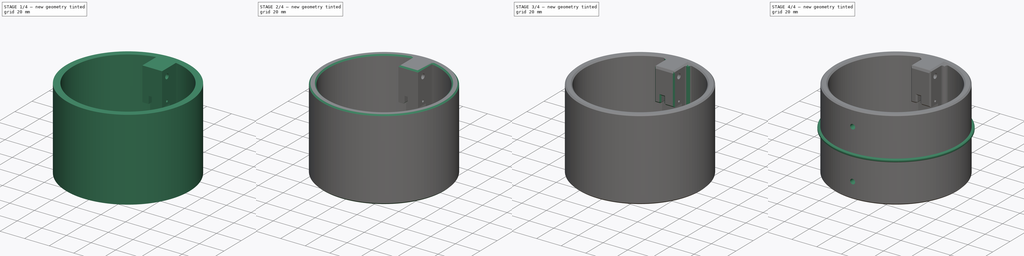
[diagram: build sequence overview — one tinted view per stage of 4, left to right]
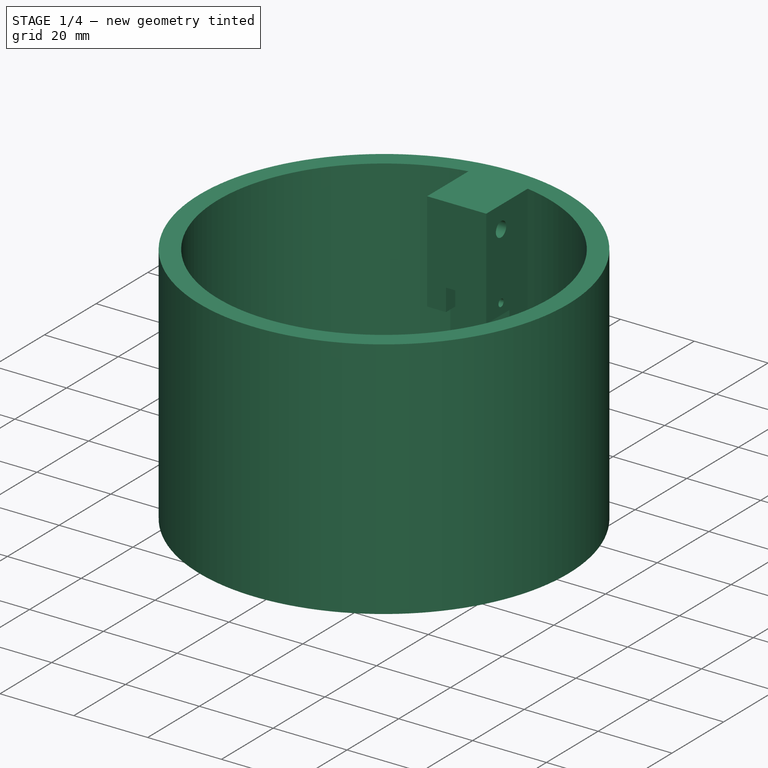
[diagram: stage 1 of 4 — iso view after this stage's code; geometry added in this stage tinted green]
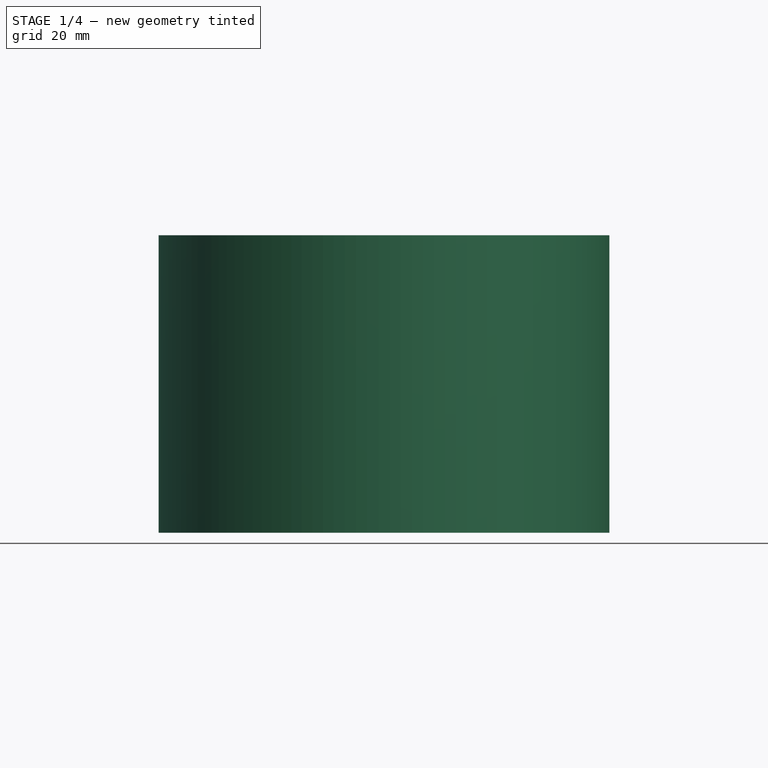
[diagram: stage 1 of 4 — front view after this stage's code; geometry added in this stage tinted green]
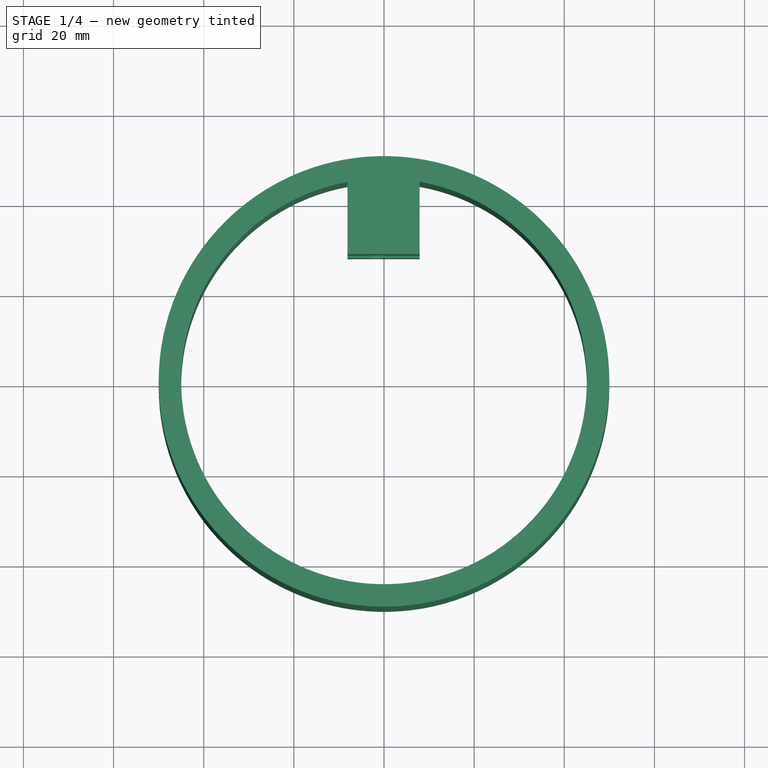
[diagram: stage 1 of 4 — top view after this stage's code; geometry added in this stage tinted green]
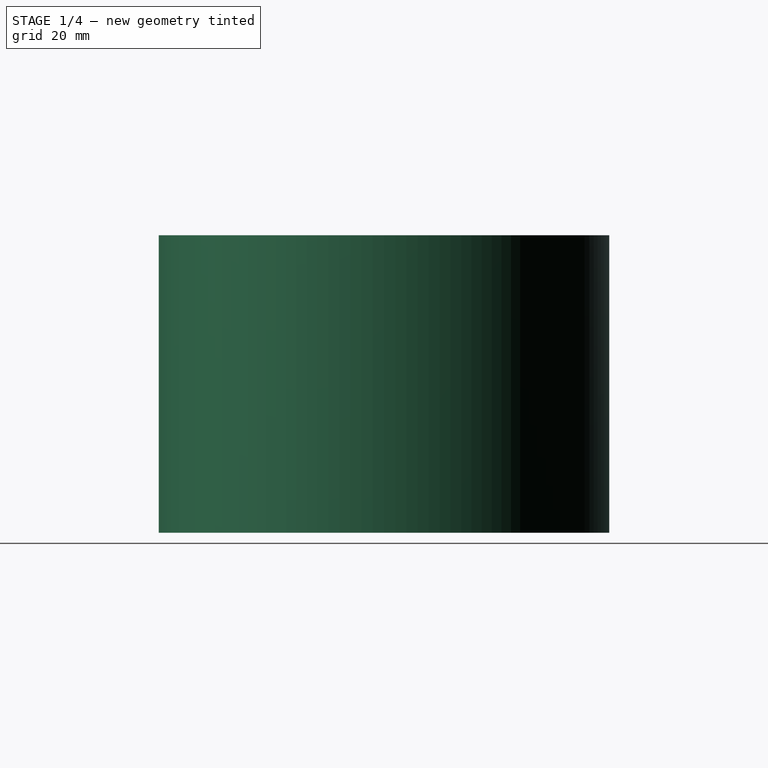
[diagram: stage 1 of 4 — right view after this stage's code; geometry added in this stage tinted green]
FCSTD DOCUMENT  (FreeCAD 0.18.3R)
Label: gondel
License: All rights reserved
LicenseURL: http://en.wikipedia.org/wiki/All_rights_reserved
objects: Sketcher::SketchObject×5, PartDesign::Chamfer×5, PartDesign::Pocket×3, PartDesign::Pad×2, PartDesign::Fillet×1, PartDesign::Body×1
note: 22 computed .brp shape members not serialized (recipe doc carries the construction recipe); baked Part::Feature solids carry a one-line shape summary decoded from their .brp

FEATURE [Sketcher::SketchObject] Sketch
  MapMode = 5
  Support = -> [XY_Plane]
  sketch-geometry (5):
    g0: Circle CenterX=0 CenterY=0 CenterZ=0 NormalX=0 NormalY=0 NormalZ=1 AngleXU=0 Radius=50
    g1: ArcOfCircle CenterX=0 CenterY=0 CenterZ=0 NormalX=0 NormalY=0 NormalZ=1 AngleXU=0 Radius=45 StartAngle=1.75181 EndAngle=7.67754
    g2: LineSegment StartX=-8.10111 StartY=44.2648 StartZ=0 EndX=-8.10111 EndY=28.2648 EndZ=0
    g3: LineSegment StartX=-8.10111 StartY=28.2648 StartZ=0 EndX=7.89885 EndY=28.2648 EndZ=0
    g4: LineSegment StartX=7.89885 StartY=28.2648 StartZ=0 EndX=7.89885 EndY=44.3013 EndZ=0
  constraints (13):
    c: Radius(g0) = 50
    c: Coincident(g-1,g0)
    c: Coincident(g1,g0)
    c: Distance(g1,g1) = 16
    c: Radius(g1) = 45
    c: Coincident(g2,g3)
    c: Coincident(g3,g4)
    c: Coincident(g1,g2)
    c: Coincident(g4,g1)
    c: Vertical(g2)
    c: Vertical(g4)
    c: Horizontal(g3)
    c: Distance(g2) = 16
FEATURE [PartDesign::Pad] Pad
  Length = 66
  Length2 = 100
  Midplane = true
  Profile = -> Sketch
  Type = 0
FEATURE [Sketcher::SketchObject] Sketch001
  MapMode = 5
  Placement = pos=(7.89885,0,0) rot=(0.57735,0.57735,0.57735;2.0944rad)
  Support = -> [Pad]
  sketch-geometry (4):
    g0: Circle CenterX=34 CenterY=27 CenterZ=0 NormalX=0 NormalY=0 NormalZ=1 AngleXU=0 Radius=2
    g1: Circle CenterX=34 CenterY=-27 CenterZ=0 NormalX=0 NormalY=0 NormalZ=1 AngleXU=0 Radius=2
    g2: Circle CenterX=34 CenterY=9 CenterZ=0 NormalX=0 NormalY=0 NormalZ=1 AngleXU=0 Radius=1
    g3: Circle CenterX=34 CenterY=-20 CenterZ=0 NormalX=0 NormalY=0 NormalZ=1 AngleXU=0 Radius=1
  constraints (12):
    c: DistanceY(g1,g-1) = 27
    c: DistanceY(g-1,g0) = 27
    c: Radius(g0) = 2
    c: Radius(g1) = 2
    c: DistanceX(g-1,g0) = 34
    c: DistanceX(g-1,g1) = 34
    c: Radius(g2) = 1
    c: Radius(g3) = 1
    c: DistanceX(g-1,g2) = 34
    c: DistanceX(g-1,g3) = 34
    c: DistanceY(g-1,g2) = 9
    c: DistanceY(g3,g-1) = 20
FEATURE [PartDesign::Pocket] Pocket
  BaseFeature = -> Pad
  Length = 16
  Length2 = 100
  Profile = -> Sketch001
  Type = 0
FEATURE [Sketcher::SketchObject] Sketch008
  MapMode = 5
  Placement = pos=(0,28.2648,0) rot=(1,0,0;1.5708rad)
  Support = -> [Pocket]
  sketch-geometry (12):
    g0: LineSegment StartX=-8.5 StartY=6 StartZ=0 EndX=-3 EndY=6 EndZ=0
    g1: LineSegment StartX=-3 StartY=6 StartZ=0 EndX=-3 EndY=12 EndZ=0
    g2: LineSegment StartX=-3 StartY=12 StartZ=0 EndX=-0.5 EndY=12 EndZ=0
    g3: LineSegment StartX=-0.5 StartY=12 StartZ=0 EndX=-0.5 EndY=6 EndZ=0
    g4: LineSegment StartX=-0.5 StartY=6 StartZ=0 EndX=8.5 EndY=6 EndZ=0
    g5: LineSegment StartX=8.5 StartY=6 StartZ=0 EndX=8.5 EndY=-17 EndZ=0
    g6: LineSegment StartX=8.5 StartY=-17 StartZ=0 EndX=-0.5 EndY=-17 EndZ=0
    g7: LineSegment StartX=-0.5 StartY=-17 StartZ=0 EndX=-0.5 EndY=-23 EndZ=0
    g8: LineSegment StartX=-0.5 StartY=-23 StartZ=0 EndX=-3 EndY=-23 EndZ=0
    g9: LineSegment StartX=-3 StartY=-23 StartZ=0 EndX=-3 EndY=-17 EndZ=0
    g10: LineSegment StartX=-3 StartY=-17 StartZ=0 EndX=-8.5 EndY=-17 EndZ=0
    g11: LineSegment StartX=-8.5 StartY=-17 StartZ=0 EndX=-8.5 EndY=6 EndZ=0
  constraints (37):
    c: Coincident(g0,g1)
    c: Coincident(g1,g2)
    c: Coincident(g2,g3)
    c: Coincident(g3,g4)
    c: Coincident(g4,g5)
    c: Coincident(g5,g6)
    c: Coincident(g6,g7)
    c: Coincident(g7,g8)
    c: Coincident(g8,g9)
    c: Coincident(g9,g10)
    c: Coincident(g10,g11)
    c: Horizontal(g2)
    c: Horizontal(g0)
    c: Horizontal(g4)
    c: Horizontal(g6)
    c: Horizontal(g10)
    c: Horizontal(g8)
    c: Vertical(g11)
    c: Vertical(g9)
    c: Vertical(g7)
    c: Vertical(g5)
    c: Vertical(g1)
    c: Vertical(g3)
    c: Distance(g5) = 23
    c: Distance(g3) = 6
    c: Distance(g7) = 6
    c: Distance(g0) = 5.5
    c: Distance(g2) = 2.5
    c: Distance(g4) = 9
    c: Equal(g7,g9)
    c: Equal(g8,g2)
    c: Equal(g3,g1)
    c: Equal(g4,g6)
    c: Equal(g10,g0)
    c: Equal(g11,g5)
    c: DistanceX(g0,g-1) = 8.5
    c: DistanceY(g-1,g0) = 6
FEATURE [PartDesign::Pocket] Pocket002
  BaseFeature = -> Pocket
  Length = 9
  Length2 = 100
  Profile = -> Sketch008
  Type = 0
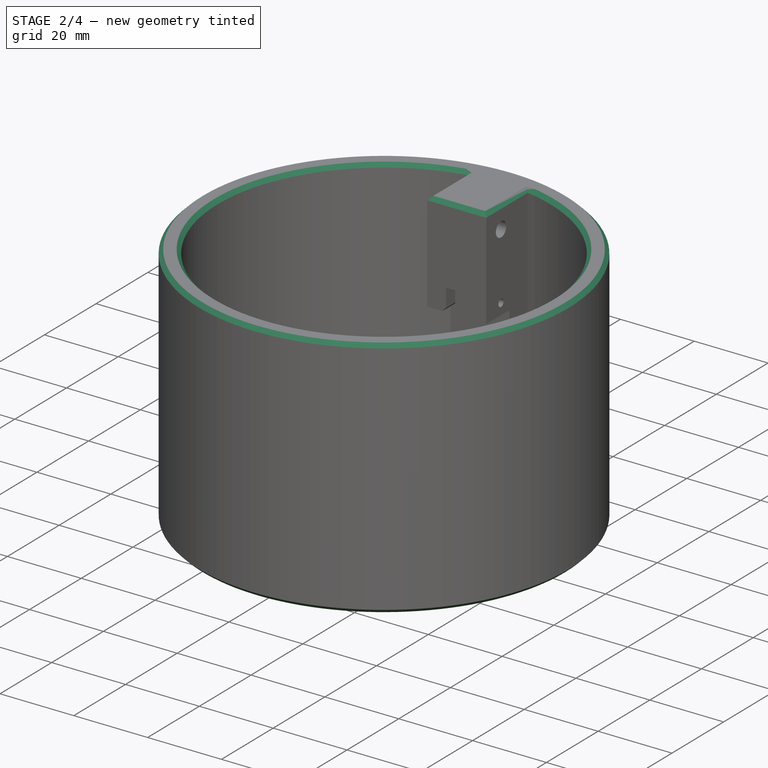
[diagram: stage 2 of 4 — iso view after this stage's code; geometry added in this stage tinted green]
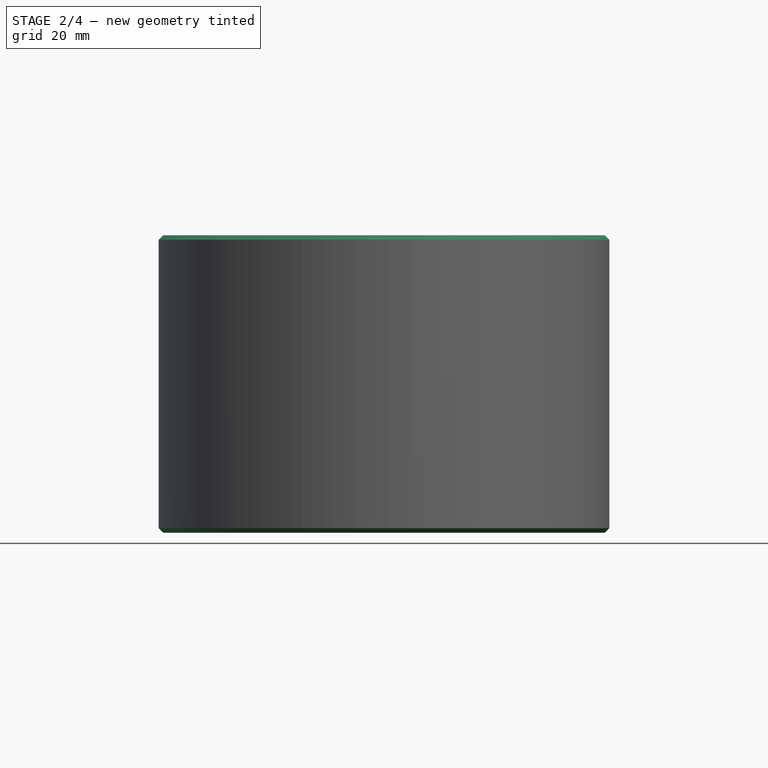
[diagram: stage 2 of 4 — front view after this stage's code; geometry added in this stage tinted green]
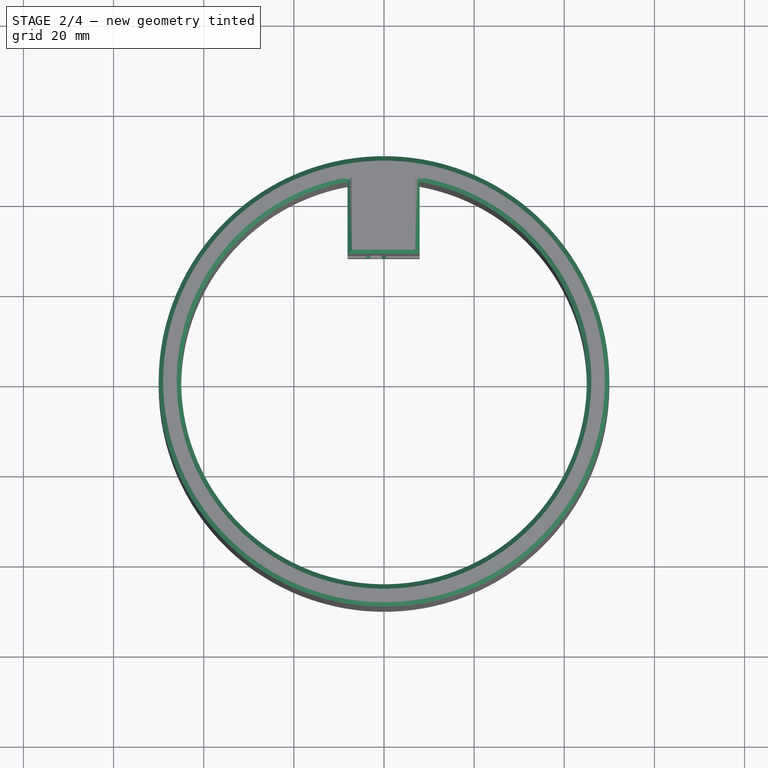
[diagram: stage 2 of 4 — top view after this stage's code; geometry added in this stage tinted green]
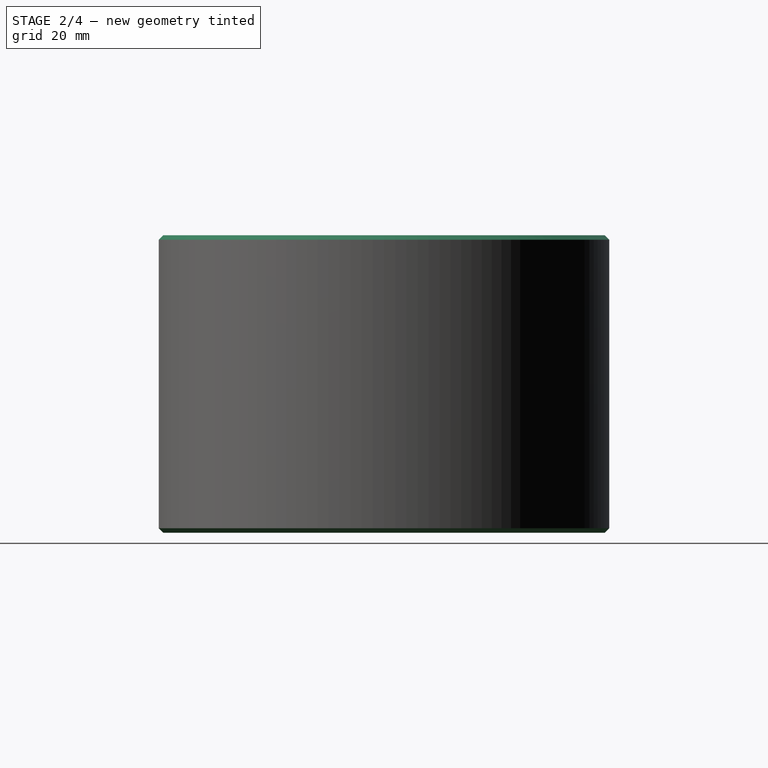
[diagram: stage 2 of 4 — right view after this stage's code; geometry added in this stage tinted green]
FEATURE [PartDesign::Chamfer] Chamfer
  Base = -> Pocket002 [Face3]
  BaseFeature = -> Pocket002
  Size = 1
FEATURE [PartDesign::Chamfer] Chamfer001
  Base = -> Chamfer [Face3]
  BaseFeature = -> Chamfer
  Size = 1
FEATURE [PartDesign::Chamfer] Chamfer002
  Base = -> Chamfer001 [Edge63,Edge80,Edge84,Edge64]
  BaseFeature = -> Chamfer001
  Size = 1
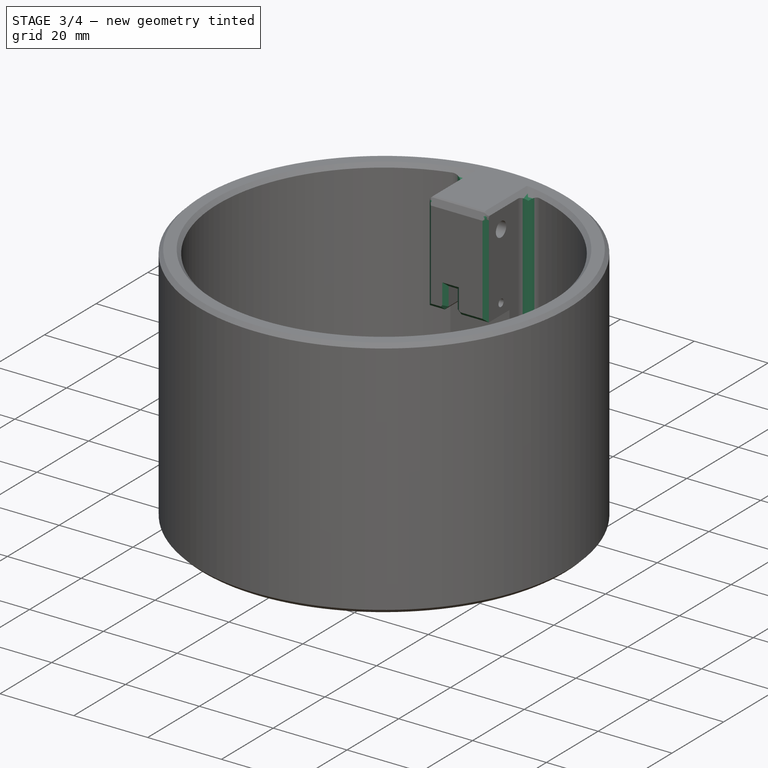
[diagram: stage 3 of 4 — iso view after this stage's code; geometry added in this stage tinted green]
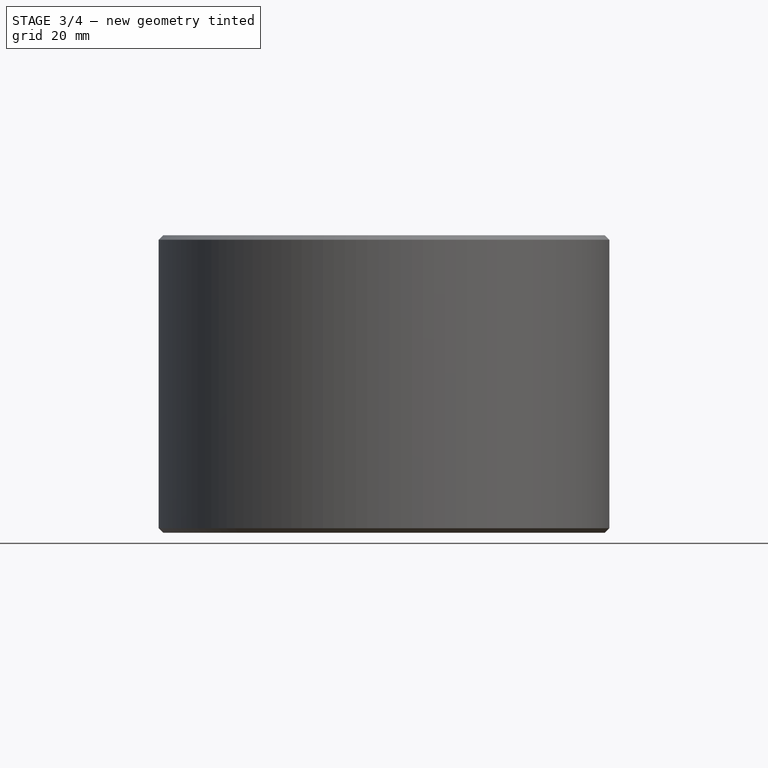
[diagram: stage 3 of 4 — front view after this stage's code; geometry added in this stage tinted green]
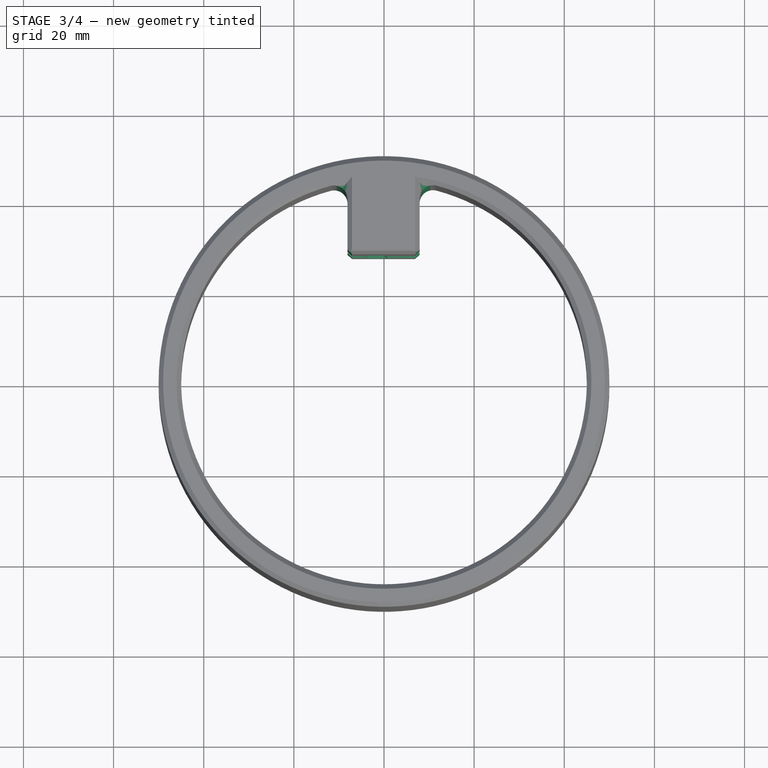
[diagram: stage 3 of 4 — top view after this stage's code; geometry added in this stage tinted green]
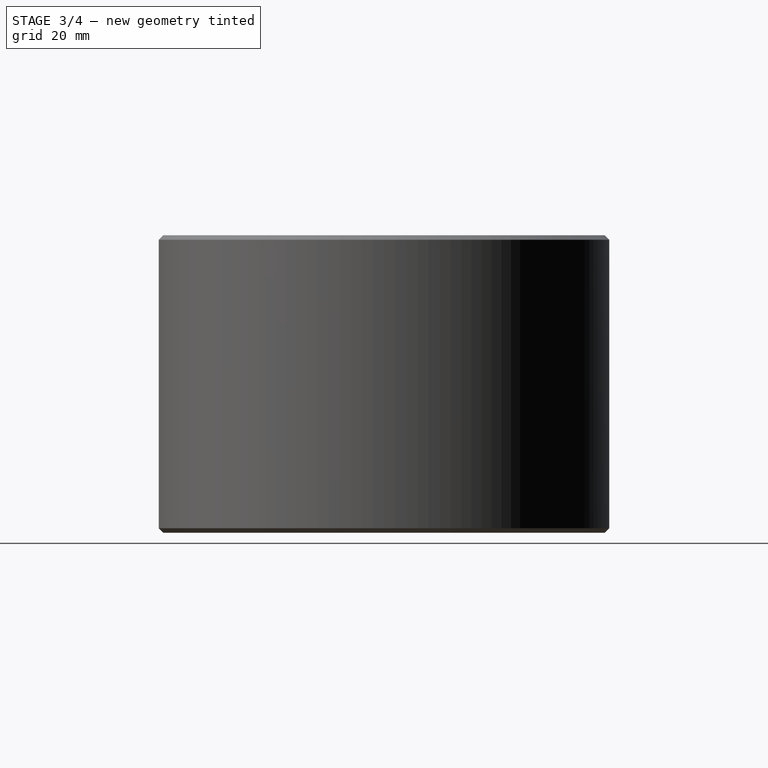
[diagram: stage 3 of 4 — right view after this stage's code; geometry added in this stage tinted green]
FEATURE [PartDesign::Chamfer] Chamfer003
  Base = -> Chamfer002 [Face1,Face16]
  BaseFeature = -> Chamfer002
  Size = 1
FEATURE [PartDesign::Fillet] Fillet001
  Base = -> Chamfer003 [Edge40,Edge62]
  BaseFeature = -> Chamfer003
  Radius = 3
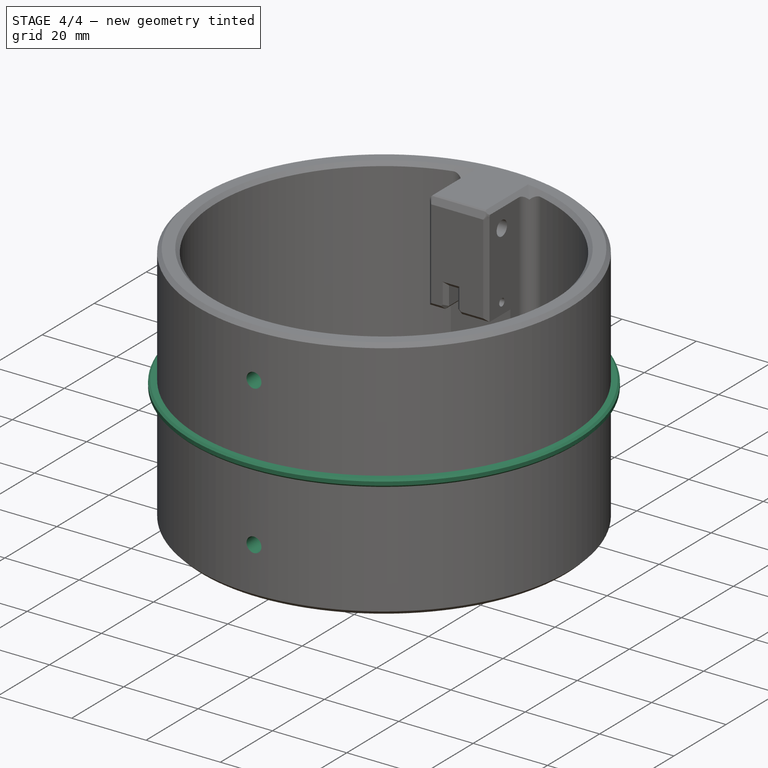
[diagram: stage 4 of 4 — iso view after this stage's code; geometry added in this stage tinted green]
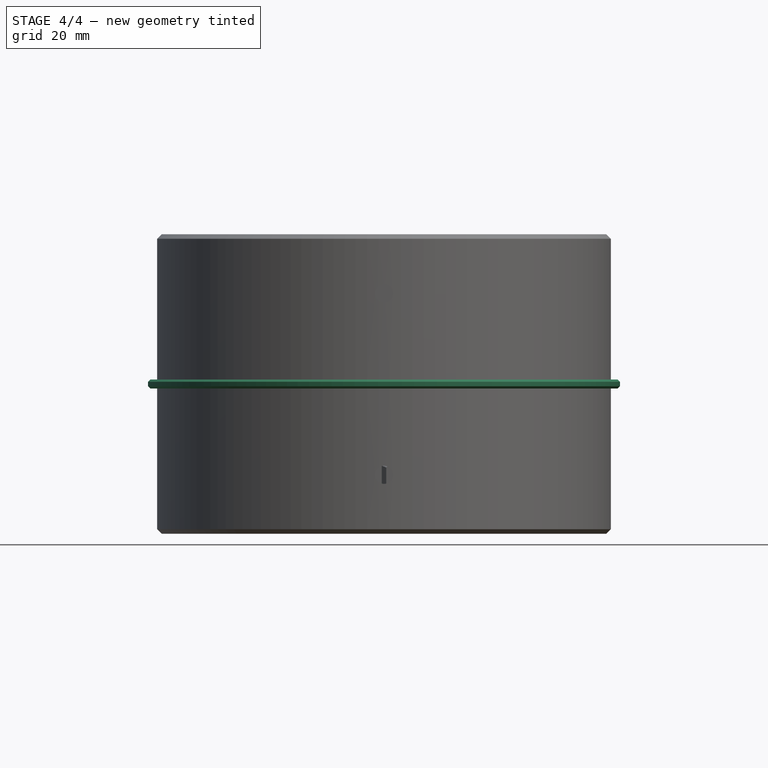
[diagram: stage 4 of 4 — front view after this stage's code; geometry added in this stage tinted green]
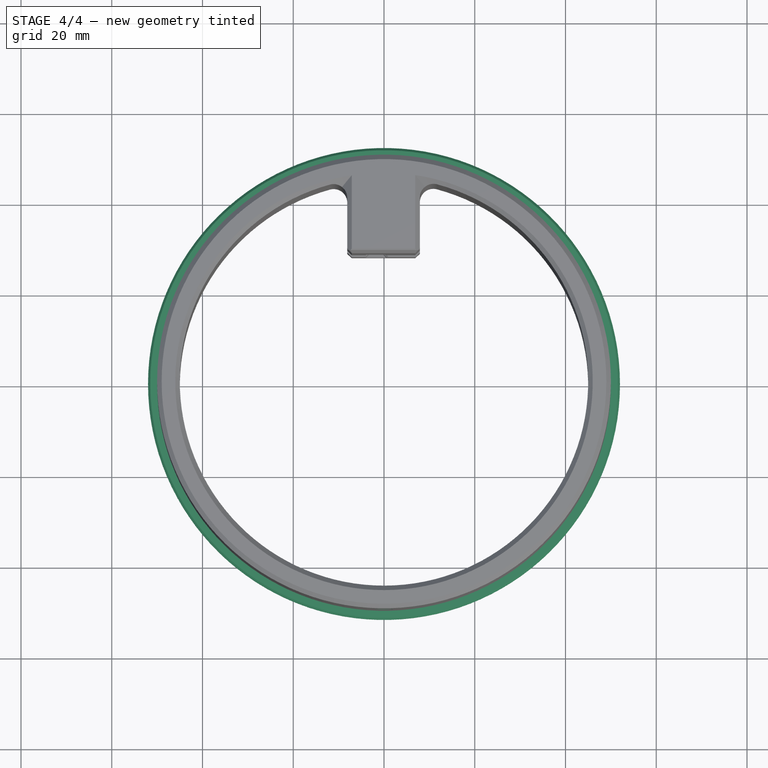
[diagram: stage 4 of 4 — top view after this stage's code; geometry added in this stage tinted green]
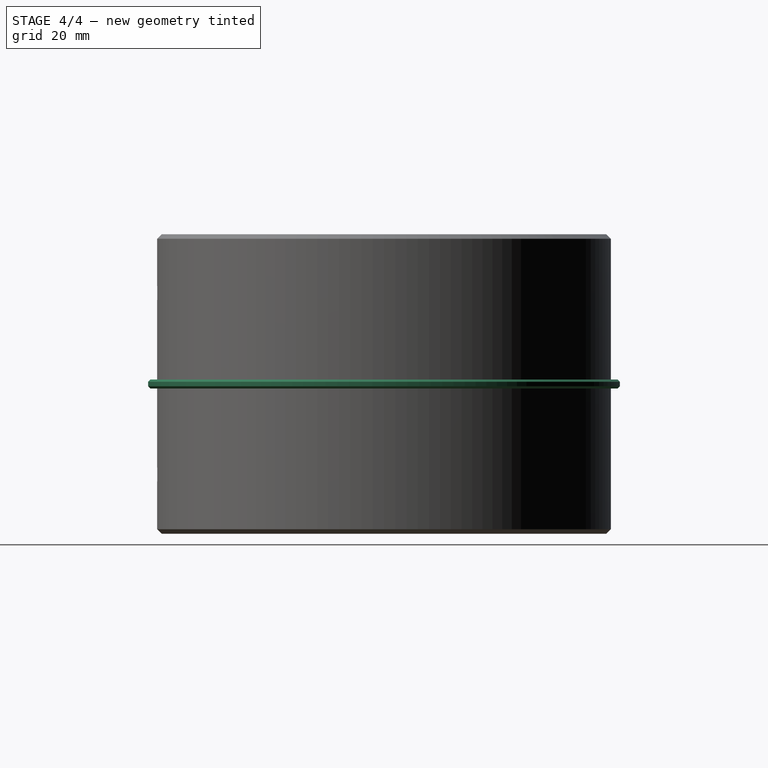
[diagram: stage 4 of 4 — right view after this stage's code; geometry added in this stage tinted green]
FEATURE [Sketcher::SketchObject] Sketch009
  MapMode = 5
  Support = -> [XY_Plane]
  sketch-geometry (2):
    g0: Circle CenterX=0 CenterY=0 CenterZ=0 NormalX=0 NormalY=0 NormalZ=1 AngleXU=0 Radius=50
    g1: Circle CenterX=0 CenterY=0 CenterZ=0 NormalX=0 NormalY=0 NormalZ=1 AngleXU=0 Radius=52
  constraints (4):
    c: Coincident(g0,g-1)
    c: Coincident(g1,g0)
    c: Radius(g0) = 50
    c: Radius(g1) = 52
FEATURE [PartDesign::Pad] Pad006
  BaseFeature = -> Fillet001
  Length = 2
  Length2 = 100
  Midplane = true
  Profile = -> Sketch009
  Type = 0
FEATURE [PartDesign::Chamfer] Chamfer004
  Base = -> Pad006 [Face69]
  BaseFeature = -> Pad006
  Size = 0.5
FEATURE [Sketcher::SketchObject] Sketch010
  MapMode = 5
  Placement = pos=(0,0,0) rot=(1,0,0;1.5708rad)
  Support = -> [XZ_Plane]
  sketch-geometry (2):
    g0: Circle CenterX=0 CenterY=20 CenterZ=0 NormalX=0 NormalY=0 NormalZ=1 AngleXU=0 Radius=2
    g1: Circle CenterX=0 CenterY=-20 CenterZ=0 NormalX=0 NormalY=0 NormalZ=1 AngleXU=0 Radius=2
  constraints (6):
    c: Radius(g0) = 2
    c: Radius(g1) = 2
    c: PointOnObject(g0,g-2)
    c: PointOnObject(g1,g-2)
    c: DistanceY(g-1,g0) = 20
    c: DistanceY(g1,g-1) = 20
FEATURE [PartDesign::Pocket] Pocket003
  BaseFeature = -> Chamfer004
  Length = 68
  Length2 = 100
  Profile = -> Sketch010
  Reversed = true
  Type = 0
FEATURE [PartDesign::Body] Body
  Group = -> [Sketch,Pad,Sketch001,Pocket,Sketch008,Pocket002,Chamfer,Chamfer001,Chamfer002,Chamfer003,Fillet001,Sketch009,Pad006,Chamfer004,Sketch010,Pocket003]
  Origin = -> Origin
  Tip = -> Pocket003
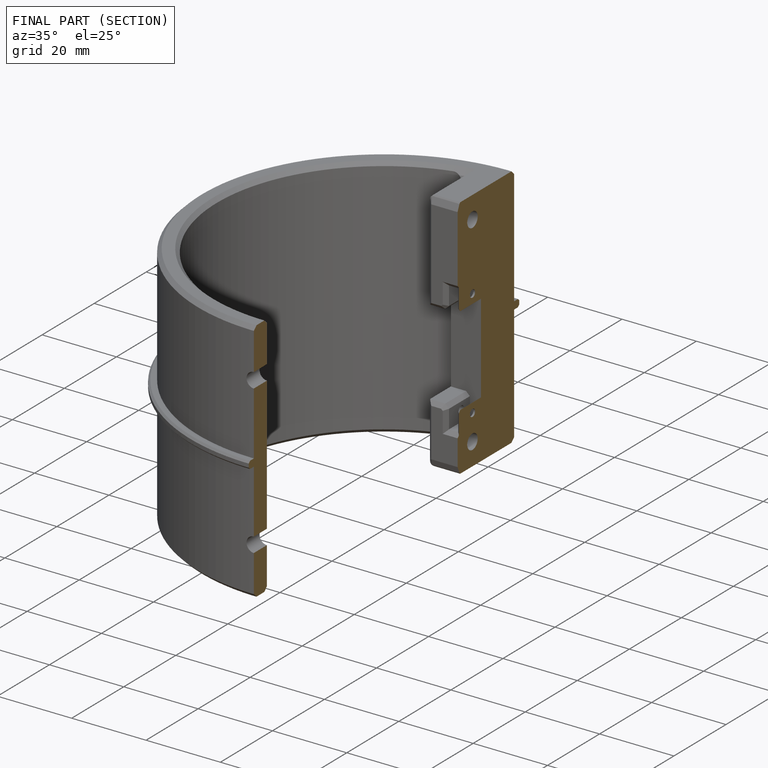
[diagram: finished part — half-section view (interior)]
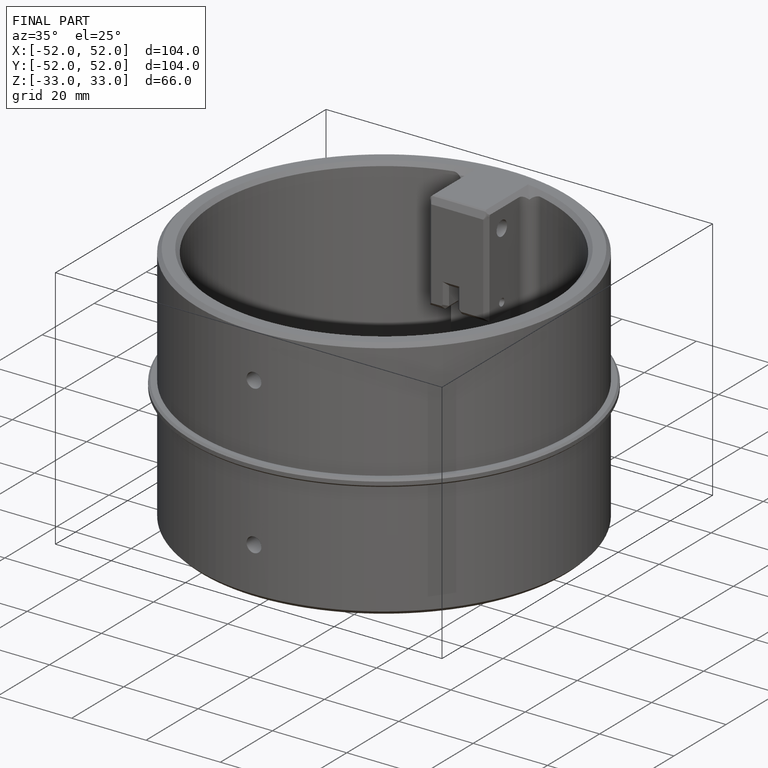
[diagram: finished part — iso view with bounding-box wireframe]
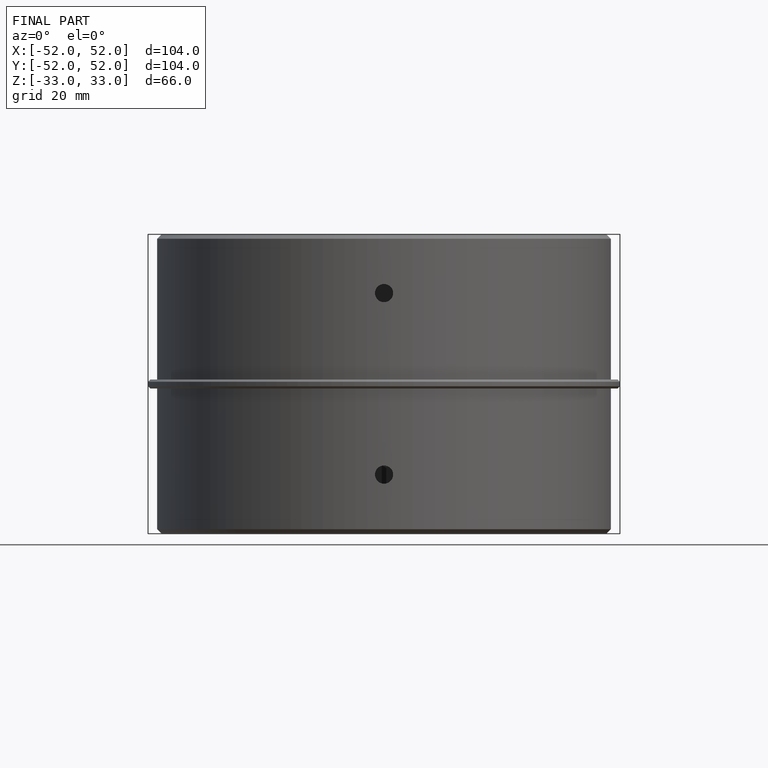
[diagram: finished part — front view with bounding-box wireframe]
